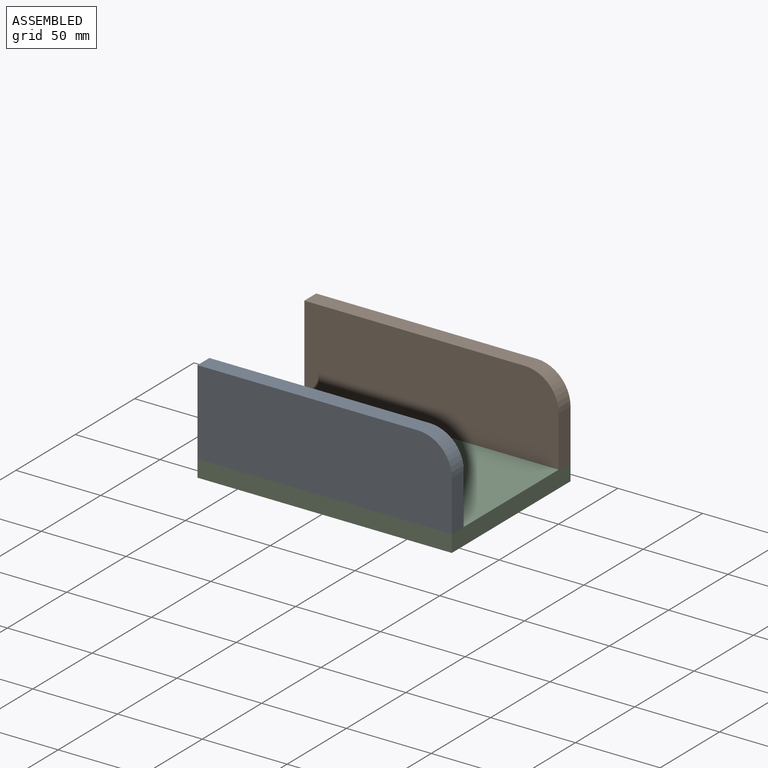
[diagram: assembled view]
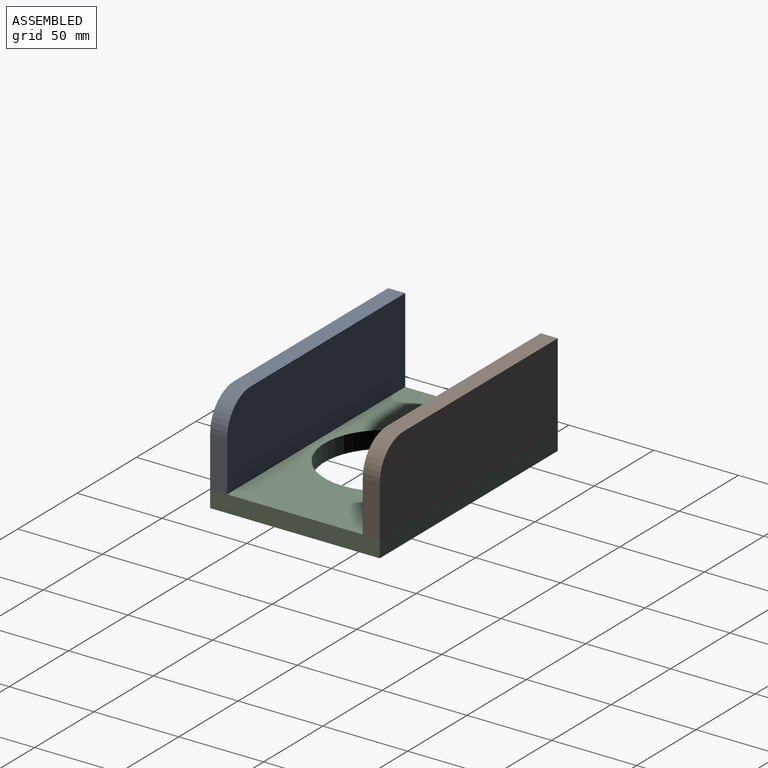
[diagram: assembled view, second angle]
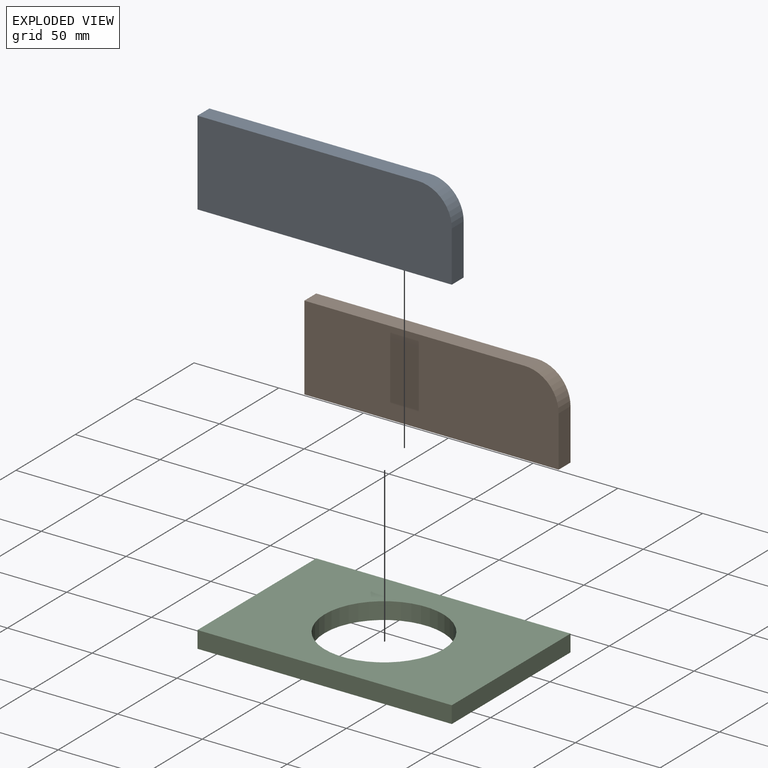
[diagram: exploded view]
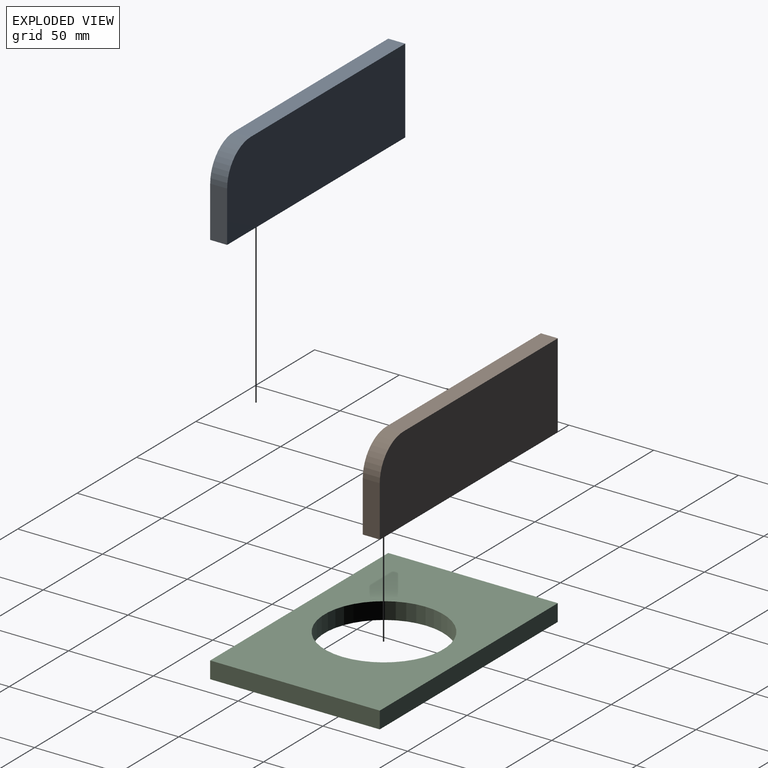
[diagram: exploded view, second angle]
ASSEMBLY  parts=3 mates=2
PART A: 7 faces, bbox 150x10x50 mm
  f0: plane 130x10mm, normal (0,0,1), area 1300mm2, adj f1,f4,f5,f6
  f1: plane 50x10mm, normal (-1,0,0), area 500mm2, adj f0,f2,f5,f6
  f2: plane 150x10mm, normal (0,0,-1), area 1500mm2, adj f1,f3,f5,f6
  f3: plane 30x10mm, normal (1,0,0), area 300mm2, adj f2,f4,f5,f6
  f4: cylinder r=20mm len=20mm, axis (0,1,0), area 314.2mm2, adj f0,f3,f5,f6
  f5: plane 150x50mm, normal (0,-1,0), area 7414.2mm2, adj f0,f1,f2,f3,f4
  f6: plane 150x50mm, normal (0,1,0), area 7414.2mm2, adj f0,f1,f2,f3,f4
PART B: same geometry as A
PART C: 7 faces, bbox 150x100x10 mm
  f0: plane 150x10mm, normal (0,1,0), area 1500mm2, adj f1,f4,f5,f6
  f1: plane 100x10mm, normal (-1,0,0), area 1000mm2, adj f0,f2,f5,f6
  f2: plane 150x10mm, normal (0,-1,0), area 1500mm2, adj f1,f4,f5,f6
  f3: cylinder r=35mm len=70mm, axis (0,0,-1), area 2199.1mm2, adj f5,f6
  f4: plane 100x10mm, normal (1,0,0), area 1000mm2, adj f0,f2,f5,f6
  f5: plane 150x100mm, normal (0,0,1), area 11151.5mm2, adj f0,f1,f2,f3,f4
  f6: plane 150x100mm, normal (0,0,-1), area 11151.5mm2, adj f0,f1,f2,f3,f4
PLACE A t=(4.02,-161.79,136.14)mm
PLACE B t=(4.02,-71.79,136.14)mm
PLACE C t=(-11.83,-143.13,99.83)mm
MATE fastened C.f5 <-> A.f2  axis (0,0,1) through (-32.62,-171.79,109.83)mm
MATE fastened C.f5 <-> B.f2  axis (0,0,1) through (-32.62,-71.79,109.83)mm
